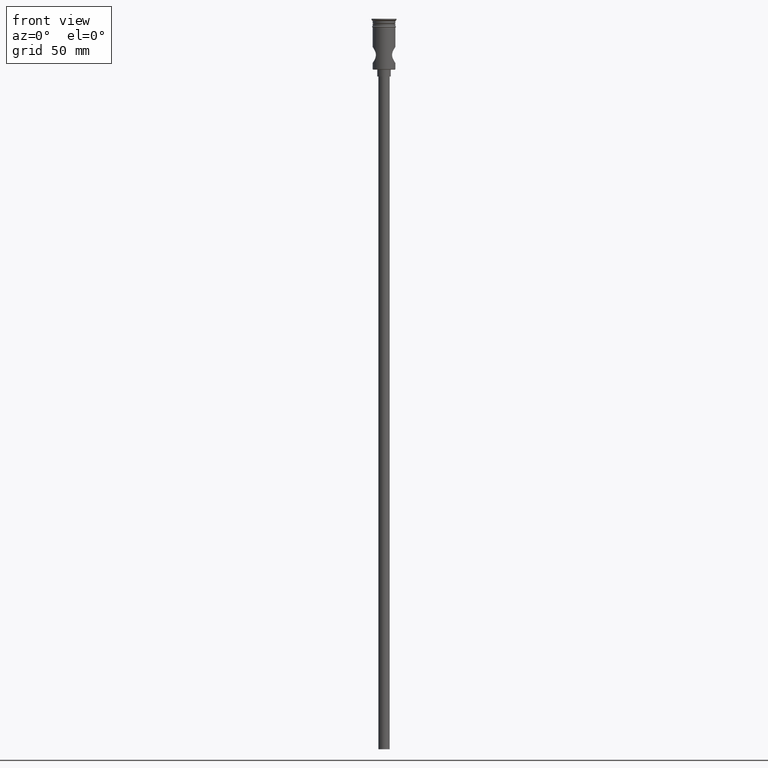
[diagram: clean part render]
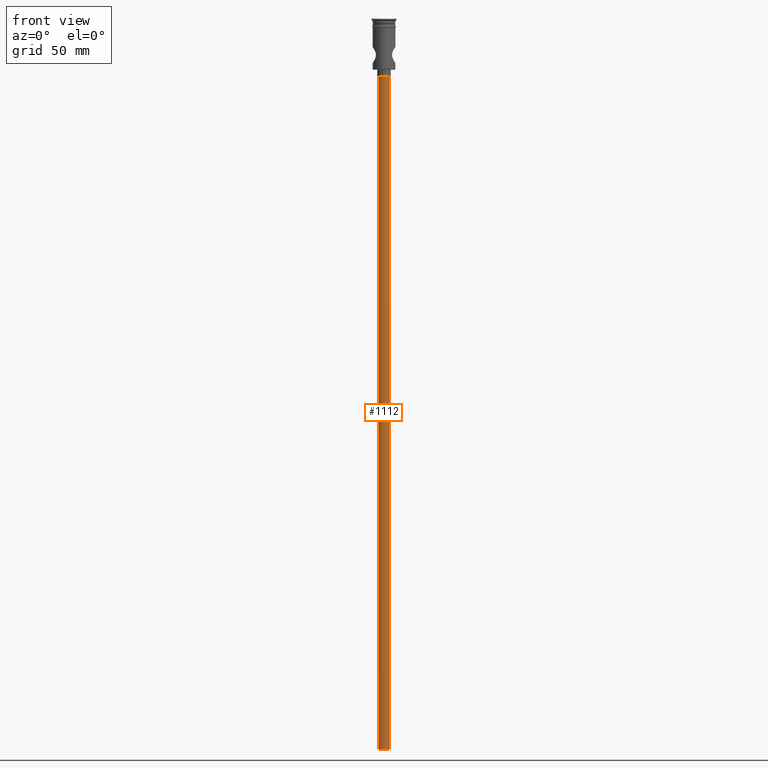
[diagram: same view with one face highlighted and labeled with its STEP entity id]
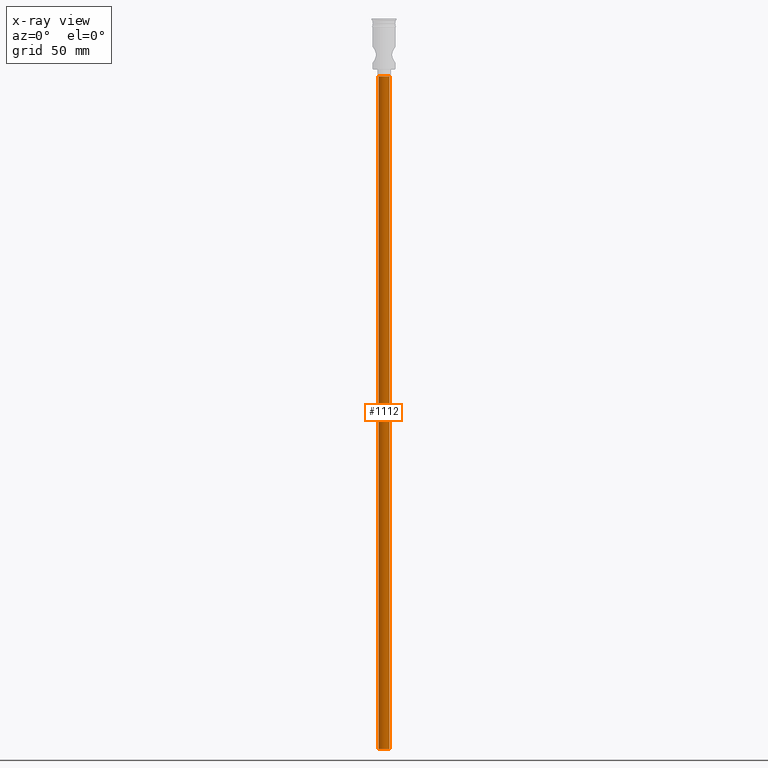
[diagram: x-ray of the same camera — body ghosted, the highlighted face saturated]
A machine part, front view. The second image highlights one B-rep face of the part: STEP entity #1112.
The next image is the same camera in x-ray: the body ghosted, the highlighted face saturated — about 0% of this face is hidden behind the body in this view.
In plain terms, the highlighted cylindrical surface (edge-blend (fillet) strip) has radius 2.5 mm, axis along (-0, -0, 1).
Its self-contained STEP definition (entity closure, byte-faithful):
#35 = CARTESIAN_POINT ( 'NONE',  ( 0.000000000000000000, 0.000000000000000000, -322.5000000000000000 ) ) ;
#66 = AXIS2_PLACEMENT_3D ( 'NONE', #35, #252, #695 ) ;
#85 = CARTESIAN_POINT ( 'NONE',  ( -2.500000000000000000, 3.061616997868383141E-16, -25.50000000000000000 ) ) ;
#108 = DIRECTION ( 'NONE',  ( 0.000000000000000000, 0.000000000000000000, -1.000000000000000000 ) ) ;
#236 = CARTESIAN_POINT ( 'NONE',  ( 2.500000000000000000, 0.000000000000000000, -25.50000000000000000 ) ) ;
#252 = DIRECTION ( 'NONE',  ( 0.000000000000000000, 0.000000000000000000, -1.000000000000000000 ) ) ;
#272 = EDGE_CURVE ( 'NONE', #409, #768, #326, .T. ) ;
#288 = DIRECTION ( 'NONE',  ( -0.000000000000000000, -0.000000000000000000, 1.000000000000000000 ) ) ;
#292 = ORIENTED_EDGE ( 'NONE', *, *, #854, .T. ) ;
#296 = CARTESIAN_POINT ( 'NONE',  ( 2.500000000000000000, 0.000000000000000000, -322.5000000000000000 ) ) ;
#326 = LINE ( 'NONE', #1223, #748 ) ;
#367 = ORIENTED_EDGE ( 'NONE', *, *, #272, .T. ) ;
#409 = VERTEX_POINT ( 'NONE', #296 ) ;
#498 = CIRCLE ( 'NONE', #1321, 2.500000000000000000 ) ;
#540 = VERTEX_POINT ( 'NONE', #937 ) ;
#552 = CYLINDRICAL_SURFACE ( 'NONE', #1179, 2.500000000000000000 ) ;
#695 = DIRECTION ( 'NONE',  ( -1.000000000000000000, 0.000000000000000000, 0.000000000000000000 ) ) ;
#699 = EDGE_CURVE ( 'NONE', #540, #1384, #848, .T. ) ;
#706 = CIRCLE ( 'NONE', #66, 2.500000000000000000 ) ;
#748 = VECTOR ( 'NONE', #770, 1000.000000000000000 ) ;
#768 = VERTEX_POINT ( 'NONE', #236 ) ;
#770 = DIRECTION ( 'NONE',  ( -0.000000000000000000, -0.000000000000000000, 1.000000000000000000 ) ) ;
#808 = CARTESIAN_POINT ( 'NONE',  ( 0.000000000000000000, 0.000000000000000000, -322.5000000000000000 ) ) ;
#848 = LINE ( 'NONE', #1288, #1391 ) ;
#854 = EDGE_CURVE ( 'NONE', #768, #1384, #498, .T. ) ;
#886 = ORIENTED_EDGE ( 'NONE', *, *, #1014, .F. ) ;
#916 = FACE_OUTER_BOUND ( 'NONE', #1433, .T. ) ;
#937 = CARTESIAN_POINT ( 'NONE',  ( -2.500000000000000000, 3.061616997868383141E-16, -322.5000000000000000 ) ) ;
#996 = DIRECTION ( 'NONE',  ( -0.000000000000000000, -0.000000000000000000, 1.000000000000000000 ) ) ;
#1008 = ORIENTED_EDGE ( 'NONE', *, *, #699, .F. ) ;
#1014 = EDGE_CURVE ( 'NONE', #409, #540, #706, .T. ) ;
#1112 = ADVANCED_FACE ( 'NONE', ( #916 ), #552, .T. ) ;
#1116 = DIRECTION ( 'NONE',  ( 1.000000000000000000, 0.000000000000000000, 0.000000000000000000 ) ) ;
#1133 = CARTESIAN_POINT ( 'NONE',  ( 0.000000000000000000, 0.000000000000000000, -25.50000000000000000 ) ) ;
#1179 = AXIS2_PLACEMENT_3D ( 'NONE', #808, #996, #1116 ) ;
#1223 = CARTESIAN_POINT ( 'NONE',  ( 2.500000000000000000, 0.000000000000000000, -322.5000000000000000 ) ) ;
#1288 = CARTESIAN_POINT ( 'NONE',  ( -2.500000000000000000, 3.061616997868383141E-16, -322.5000000000000000 ) ) ;
#1321 = AXIS2_PLACEMENT_3D ( 'NONE', #1133, #108, #1465 ) ;
#1384 = VERTEX_POINT ( 'NONE', #85 ) ;
#1391 = VECTOR ( 'NONE', #288, 1000.000000000000000 ) ;
#1433 = EDGE_LOOP ( 'NONE', ( #1008, #886, #367, #292 ) ) ;
#1465 = DIRECTION ( 'NONE',  ( -1.000000000000000000, 0.000000000000000000, 0.000000000000000000 ) ) ;